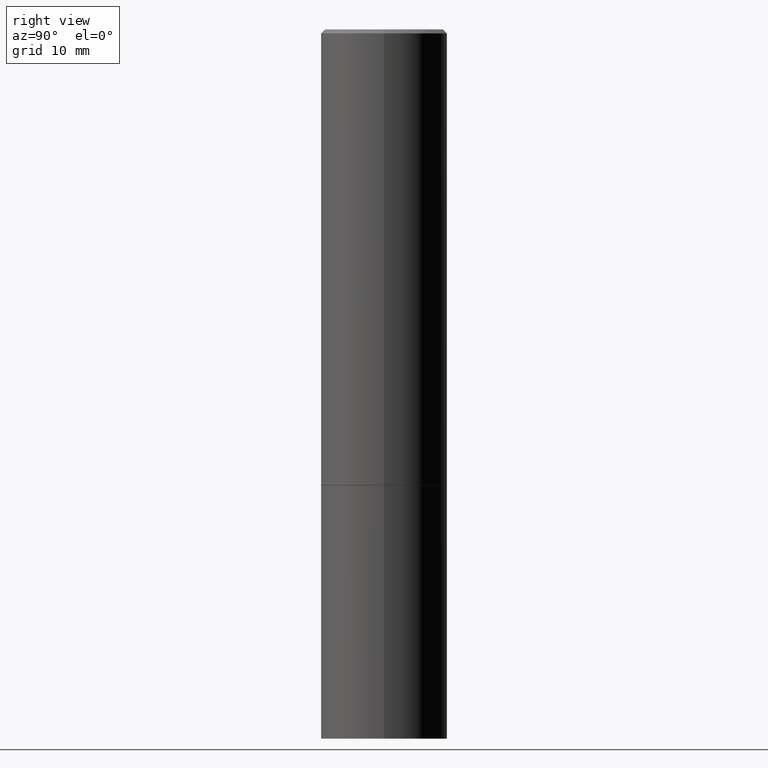
[diagram: clean part render]
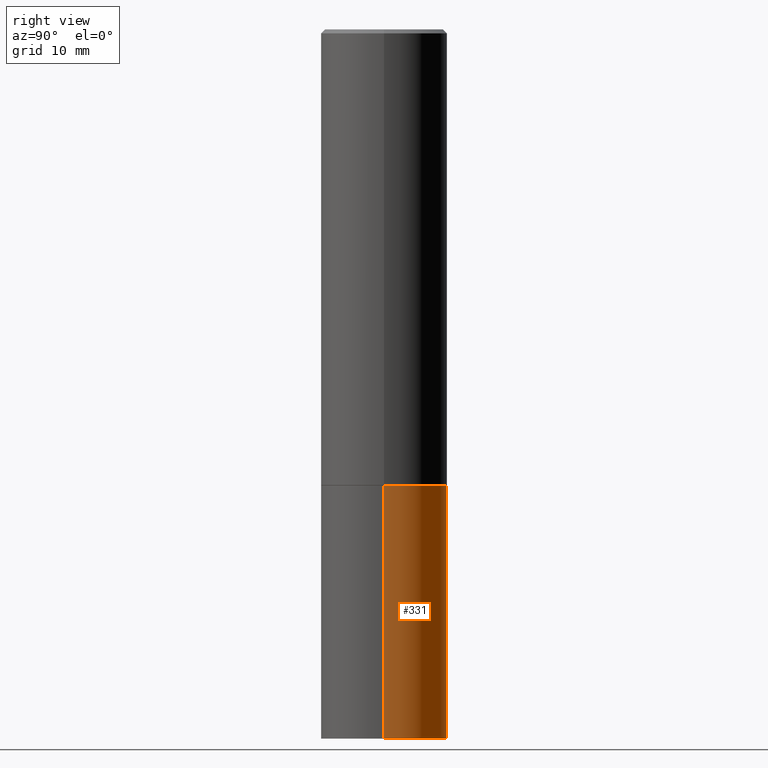
[diagram: same view with one face highlighted and labeled with its STEP entity id]
A machine part, right view. The second image highlights one B-rep face of the part: STEP entity #331.
In plain terms, the highlighted cylindrical surface (partial cylindrical patch) has radius 7.9375 mm, axis along (-0, 0, 1).
Its self-contained STEP definition (entity closure, byte-faithful):
#1 = VECTOR ( 'NONE', #216, 39.37007874015748143 ) ;
#4 = VERTEX_POINT ( 'NONE', #323 ) ;
#9 = CARTESIAN_POINT ( 'NONE',  ( 0.3125000000000000000, -1.440236052272796769E-14, -3.500000000000000000 ) ) ;
#28 = CIRCLE ( 'NONE', #129, 0.3125000000000000000 ) ;
#30 = ORIENTED_EDGE ( 'NONE', *, *, #104, .F. ) ;
#33 = VERTEX_POINT ( 'NONE', #263 ) ;
#41 = LINE ( 'NONE', #183, #1 ) ;
#42 = CARTESIAN_POINT ( 'NONE',  ( 0.3125000000000000000, -2.182175836776958347E-15, 1.523805242436230075E-29 ) ) ;
#44 = VECTOR ( 'NONE', #110, 39.37007874015748143 ) ;
#47 = DIRECTION ( 'NONE',  ( 1.000000000000000000, -6.982962677686269077E-15, 0.000000000000000000 ) ) ;
#49 = DIRECTION ( 'NONE',  ( -2.445468806185136597E-29, 3.491481338843145583E-15, 1.000000000000000000 ) ) ;
#84 = VERTEX_POINT ( 'NONE', #9 ) ;
#88 = EDGE_CURVE ( 'NONE', #4, #33, #41, .T. ) ;
#91 = CARTESIAN_POINT ( 'NONE',  ( 0.3125000000000000000, -1.003800884917403522E-14, -2.249999999999999556 ) ) ;
#104 = EDGE_CURVE ( 'NONE', #118, #33, #28, .T. ) ;
#110 = DIRECTION ( 'NONE',  ( -2.445468806185136877E-29, 3.491481338843145188E-15, 1.000000000000000000 ) ) ;
#118 = VERTEX_POINT ( 'NONE', #91 ) ;
#129 = AXIS2_PLACEMENT_3D ( 'NONE', #184, #272, #252 ) ;
#138 = AXIS2_PLACEMENT_3D ( 'NONE', #260, #162, #47 ) ;
#143 = ORIENTED_EDGE ( 'NONE', *, *, #254, .F. ) ;
#146 = ORIENTED_EDGE ( 'NONE', *, *, #277, .T. ) ;
#162 = DIRECTION ( 'NONE',  ( -2.445468806185136597E-29, 3.491481338843145583E-15, 1.000000000000000000 ) ) ;
#168 = FACE_OUTER_BOUND ( 'NONE', #169, .T. ) ;
#169 = EDGE_LOOP ( 'NONE', ( #146, #207, #30, #143 ) ) ;
#171 = DIRECTION ( 'NONE',  ( 1.000000000000000000, -6.982962677686266711E-15, 4.876176775795936353E-29 ) ) ;
#177 = CIRCLE ( 'NONE', #138, 0.3125000000000000000 ) ;
#183 = CARTESIAN_POINT ( 'NONE',  ( -0.3125000000000000000, 2.220446049250313081E-15, -1.537167215704658232E-29 ) ) ;
#184 = CARTESIAN_POINT ( 'NONE',  ( 5.502304813916556222E-29, -7.855833012397076871E-15, -2.249999999999999556 ) ) ;
#207 = ORIENTED_EDGE ( 'NONE', *, *, #88, .T. ) ;
#216 = DIRECTION ( 'NONE',  ( -2.445468806185136877E-29, 3.491481338843145188E-15, 1.000000000000000000 ) ) ;
#252 = DIRECTION ( 'NONE',  ( 1.000000000000000000, -6.982962677686269077E-15, 0.000000000000000000 ) ) ;
#254 = EDGE_CURVE ( 'NONE', #84, #118, #333, .T. ) ;
#260 = CARTESIAN_POINT ( 'NONE',  ( 8.559140821647976968E-29, -1.222018468595100934E-14, -3.500000000000000000 ) ) ;
#263 = CARTESIAN_POINT ( 'NONE',  ( -0.3125000000000000000, -7.817562799923730025E-15, -2.249999999999999556 ) ) ;
#272 = DIRECTION ( 'NONE',  ( -2.445468806185136597E-29, 3.491481338843145583E-15, 1.000000000000000000 ) ) ;
#277 = EDGE_CURVE ( 'NONE', #84, #4, #177, .T. ) ;
#287 = CYLINDRICAL_SURFACE ( 'NONE', #312, 0.3125000000000000000 ) ;
#312 = AXIS2_PLACEMENT_3D ( 'NONE', #366, #49, #171 ) ;
#323 = CARTESIAN_POINT ( 'NONE',  ( -0.3125000000000000000, -7.817562799923730025E-15, -3.500000000000000000 ) ) ;
#331 = ADVANCED_FACE ( 'NONE', ( #168 ), #287, .T. ) ;
#333 = LINE ( 'NONE', #42, #44 ) ;
#366 = CARTESIAN_POINT ( 'NONE',  ( 0.000000000000000000, 0.000000000000000000, 0.000000000000000000 ) ) ;